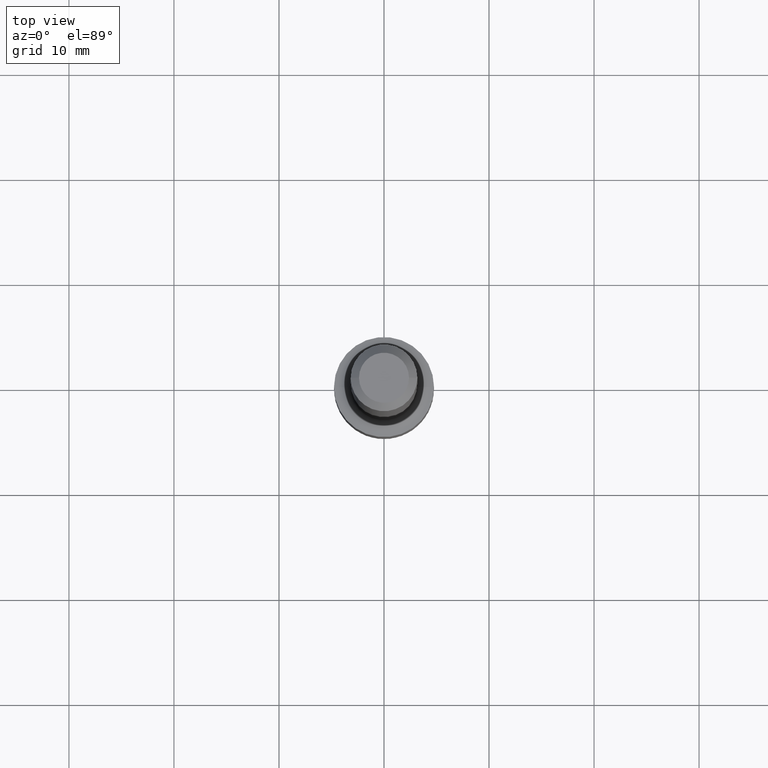
[diagram: clean part render]
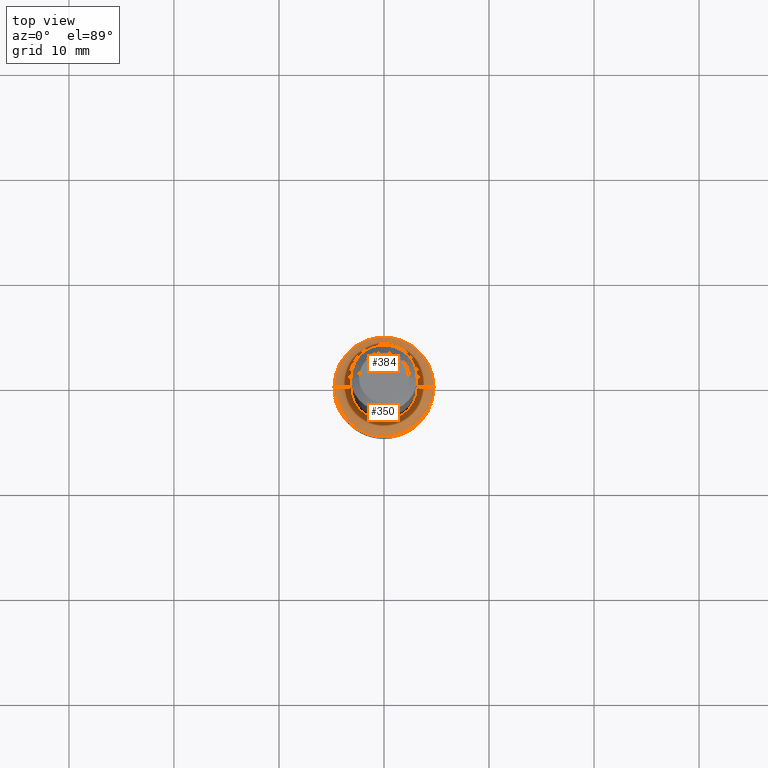
[diagram: same view with one multi-face feature highlighted, each face labeled with its STEP entity id]
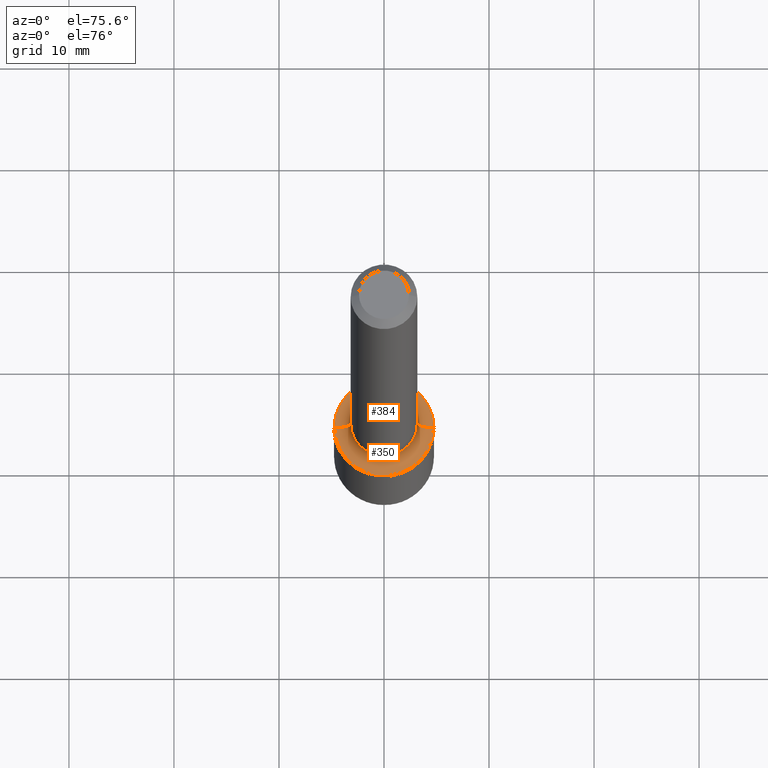
[diagram: same view with one multi-face feature highlighted, each face labeled with its STEP entity id]
A machine part, top view. The highlighted faces form ONE feature: a constant-radius fillet chain: 2 tangent blend faces with common blend radius 1.5875 mm. The faces share edges in the B-rep.
A second angle (auxiliary view) of the same feature is appended — it is thin or edge-on in the first view.
Their STEP definitions:
[1] entity #384 (Torus):
#7 = CIRCLE ( 'NONE', #280, 0.1250000000000002498 ) ;
#24 = DIRECTION ( 'NONE',  ( 1.000000000000000000, -6.982962677686264344E-15, 0.000000000000000000 ) ) ;
#28 = VERTEX_POINT ( 'NONE', #39 ) ;
#38 = AXIS2_PLACEMENT_3D ( 'NONE', #403, #201, #361 ) ;
#39 = CARTESIAN_POINT ( 'NONE',  ( 0.1250000000000002498, -7.648089872735909268E-15, -1.940500000000000336 ) ) ;
#54 = DIRECTION ( 'NONE',  ( 1.000000000000000000, -6.982962677686265922E-15, 0.000000000000000000 ) ) ;
#64 = CARTESIAN_POINT ( 'NONE',  ( 4.898274018788828321E-29, -6.993437121702820187E-15, -2.003000000000000114 ) ) ;
#69 = FACE_OUTER_BOUND ( 'NONE', #72, .T. ) ;
#72 = EDGE_LOOP ( 'NONE', ( #385, #221, #514, #410 ) ) ;
#83 = DIRECTION ( 'NONE',  ( 1.000000000000000000, -6.982962677686260400E-15, 0.000000000000000000 ) ) ;
#103 = VERTEX_POINT ( 'NONE', #215 ) ;
#109 = EDGE_CURVE ( 'NONE', #28, #181, #111, .T. ) ;
#111 = CIRCLE ( 'NONE', #290, 0.06249999999999974326 ) ;
#126 = DIRECTION ( 'NONE',  ( -6.982962677686266711E-15, -1.000000000000000000, 3.491481338843145583E-15 ) ) ;
#161 = EDGE_CURVE ( 'NONE', #28, #103, #7, .T. ) ;
#164 = AXIS2_PLACEMENT_3D ( 'NONE', #64, #296, #54 ) ;
#181 = VERTEX_POINT ( 'NONE', #460 ) ;
#201 = DIRECTION ( 'NONE',  ( 7.105427357601001859E-15, 1.000000000000000000, -3.491481338843145583E-15 ) ) ;
#205 = DIRECTION ( 'NONE',  ( -2.445468806185136597E-29, 3.491481338843145583E-15, 1.000000000000000000 ) ) ;
#215 = CARTESIAN_POINT ( 'NONE',  ( -0.1250000000000002498, -5.774105305238813757E-15, -1.940500000000000336 ) ) ;
#221 = ORIENTED_EDGE ( 'NONE', *, *, #161, .F. ) ;
#252 = VERTEX_POINT ( 'NONE', #333 ) ;
#271 = CIRCLE ( 'NONE', #38, 0.06249999999999974326 ) ;
#280 = AXIS2_PLACEMENT_3D ( 'NONE', #299, #335, #24 ) ;
#290 = AXIS2_PLACEMENT_3D ( 'NONE', #359, #126, #83 ) ;
#296 = DIRECTION ( 'NONE',  ( -2.445468806185136597E-29, 3.491481338843145583E-15, 1.000000000000000000 ) ) ;
#298 = EDGE_CURVE ( 'NONE', #181, #252, #392, .T. ) ;
#299 = CARTESIAN_POINT ( 'NONE',  ( 4.745432218402258405E-29, -6.775219538025124352E-15, -1.940500000000000336 ) ) ;
#309 = CARTESIAN_POINT ( 'NONE',  ( 4.745432218402258405E-29, -6.775219538025124352E-15, -1.940500000000000336 ) ) ;
#333 = CARTESIAN_POINT ( 'NONE',  ( -0.1875000000000000555, -5.661169492152631549E-15, -2.003000000000000114 ) ) ;
#335 = DIRECTION ( 'NONE',  ( -2.445468806185136597E-29, 3.491481338843145583E-15, 1.000000000000000000 ) ) ;
#341 = AXIS2_PLACEMENT_3D ( 'NONE', #309, #205, #360 ) ;
#359 = CARTESIAN_POINT ( 'NONE',  ( 0.1875000000000000555, -8.084525040091299360E-15, -1.940500000000000336 ) ) ;
#360 = DIRECTION ( 'NONE',  ( 1.000000000000000000, -6.982962677686269077E-15, 4.883557194083114022E-29 ) ) ;
#361 = DIRECTION ( 'NONE',  ( -1.000000000000000000, 7.105427357600993970E-15, 0.000000000000000000 ) ) ;
#363 = TOROIDAL_SURFACE ( 'NONE', #341, 0.1875000000000000555, 0.06249999999999974326 ) ;
#384 = ADVANCED_FACE ( 'NONE', ( #69 ), #363, .F. ) ;
#385 = ORIENTED_EDGE ( 'NONE', *, *, #462, .F. ) ;
#392 = CIRCLE ( 'NONE', #164, 0.1875000000000000555 ) ;
#403 = CARTESIAN_POINT ( 'NONE',  ( -0.1875000000000000555, -5.442951908474935715E-15, -1.940500000000000336 ) ) ;
#410 = ORIENTED_EDGE ( 'NONE', *, *, #298, .T. ) ;
#460 = CARTESIAN_POINT ( 'NONE',  ( 0.1875000000000000555, -8.302742623768995984E-15, -2.003000000000000114 ) ) ;
#462 = EDGE_CURVE ( 'NONE', #103, #252, #271, .T. ) ;
#514 = ORIENTED_EDGE ( 'NONE', *, *, #109, .T. ) ;
[2] entity #350 (Torus):
#22 = DIRECTION ( 'NONE',  ( -2.445468806185136597E-29, 3.491481338843145583E-15, 1.000000000000000000 ) ) ;
#28 = VERTEX_POINT ( 'NONE', #39 ) ;
#38 = AXIS2_PLACEMENT_3D ( 'NONE', #403, #201, #361 ) ;
#39 = CARTESIAN_POINT ( 'NONE',  ( 0.1250000000000002498, -7.648089872735909268E-15, -1.940500000000000336 ) ) ;
#47 = TOROIDAL_SURFACE ( 'NONE', #424, 0.1875000000000000555, 0.06249999999999974326 ) ;
#71 = DIRECTION ( 'NONE',  ( -2.445468806185136597E-29, 3.491481338843145583E-15, 1.000000000000000000 ) ) ;
#78 = AXIS2_PLACEMENT_3D ( 'NONE', #464, #188, #110 ) ;
#83 = DIRECTION ( 'NONE',  ( 1.000000000000000000, -6.982962677686260400E-15, 0.000000000000000000 ) ) ;
#103 = VERTEX_POINT ( 'NONE', #215 ) ;
#109 = EDGE_CURVE ( 'NONE', #28, #181, #111, .T. ) ;
#110 = DIRECTION ( 'NONE',  ( 1.000000000000000000, -6.982962677686265922E-15, 0.000000000000000000 ) ) ;
#111 = CIRCLE ( 'NONE', #290, 0.06249999999999974326 ) ;
#112 = ORIENTED_EDGE ( 'NONE', *, *, #109, .F. ) ;
#126 = DIRECTION ( 'NONE',  ( -6.982962677686266711E-15, -1.000000000000000000, 3.491481338843145583E-15 ) ) ;
#146 = EDGE_LOOP ( 'NONE', ( #450, #216, #348, #112 ) ) ;
#173 = CIRCLE ( 'NONE', #78, 0.1875000000000000555 ) ;
#181 = VERTEX_POINT ( 'NONE', #460 ) ;
#188 = DIRECTION ( 'NONE',  ( -2.445468806185136597E-29, 3.491481338843145583E-15, 1.000000000000000000 ) ) ;
#201 = DIRECTION ( 'NONE',  ( 7.105427357601001859E-15, 1.000000000000000000, -3.491481338843145583E-15 ) ) ;
#215 = CARTESIAN_POINT ( 'NONE',  ( -0.1250000000000002498, -5.774105305238813757E-15, -1.940500000000000336 ) ) ;
#216 = ORIENTED_EDGE ( 'NONE', *, *, #462, .T. ) ;
#246 = EDGE_CURVE ( 'NONE', #103, #28, #323, .T. ) ;
#252 = VERTEX_POINT ( 'NONE', #333 ) ;
#259 = DIRECTION ( 'NONE',  ( 1.000000000000000000, -6.982962677686264344E-15, 0.000000000000000000 ) ) ;
#270 = AXIS2_PLACEMENT_3D ( 'NONE', #448, #22, #259 ) ;
#271 = CIRCLE ( 'NONE', #38, 0.06249999999999974326 ) ;
#272 = DIRECTION ( 'NONE',  ( 1.000000000000000000, -6.982962677686269077E-15, 4.883557194083114022E-29 ) ) ;
#274 = CARTESIAN_POINT ( 'NONE',  ( 4.745432218402258405E-29, -6.775219538025124352E-15, -1.940500000000000336 ) ) ;
#290 = AXIS2_PLACEMENT_3D ( 'NONE', #359, #126, #83 ) ;
#313 = FACE_OUTER_BOUND ( 'NONE', #146, .T. ) ;
#323 = CIRCLE ( 'NONE', #270, 0.1250000000000002498 ) ;
#333 = CARTESIAN_POINT ( 'NONE',  ( -0.1875000000000000555, -5.661169492152631549E-15, -2.003000000000000114 ) ) ;
#334 = EDGE_CURVE ( 'NONE', #252, #181, #173, .T. ) ;
#348 = ORIENTED_EDGE ( 'NONE', *, *, #334, .T. ) ;
#350 = ADVANCED_FACE ( 'NONE', ( #313 ), #47, .F. ) ;
#359 = CARTESIAN_POINT ( 'NONE',  ( 0.1875000000000000555, -8.084525040091299360E-15, -1.940500000000000336 ) ) ;
#361 = DIRECTION ( 'NONE',  ( -1.000000000000000000, 7.105427357600993970E-15, 0.000000000000000000 ) ) ;
#403 = CARTESIAN_POINT ( 'NONE',  ( -0.1875000000000000555, -5.442951908474935715E-15, -1.940500000000000336 ) ) ;
#424 = AXIS2_PLACEMENT_3D ( 'NONE', #274, #71, #272 ) ;
#448 = CARTESIAN_POINT ( 'NONE',  ( 4.745432218402258405E-29, -6.775219538025124352E-15, -1.940500000000000336 ) ) ;
#450 = ORIENTED_EDGE ( 'NONE', *, *, #246, .F. ) ;
#460 = CARTESIAN_POINT ( 'NONE',  ( 0.1875000000000000555, -8.302742623768995984E-15, -2.003000000000000114 ) ) ;
#462 = EDGE_CURVE ( 'NONE', #103, #252, #271, .T. ) ;
#464 = CARTESIAN_POINT ( 'NONE',  ( 4.898274018788828321E-29, -6.993437121702820187E-15, -2.003000000000000114 ) ) ;